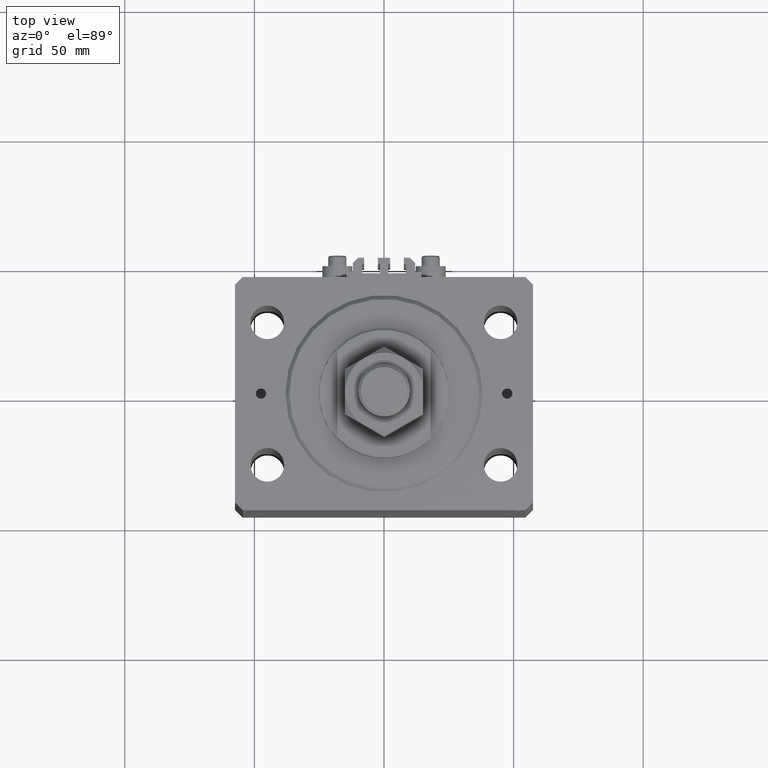
[diagram: clean part render]
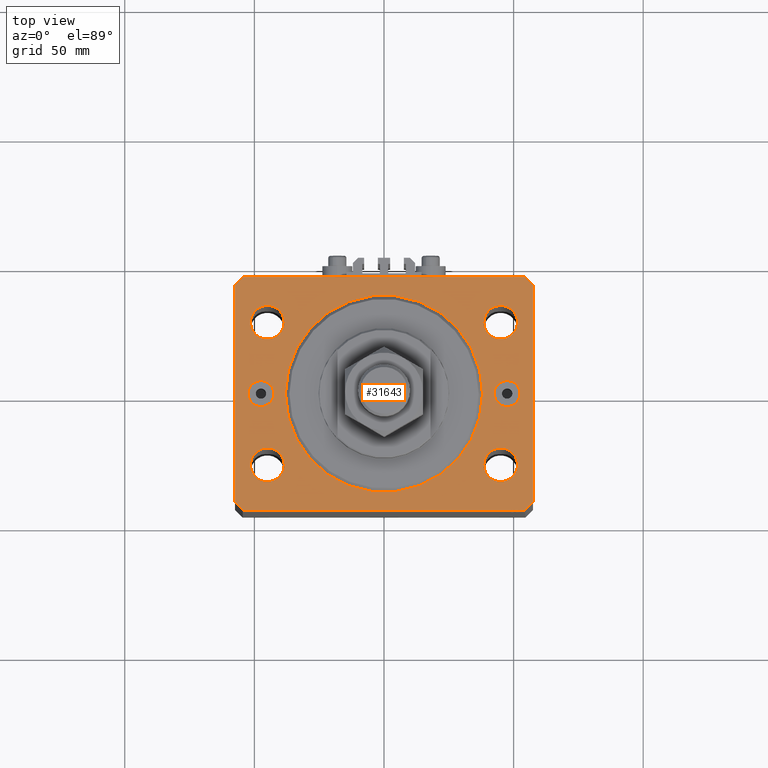
[diagram: same view with one face highlighted and labeled with its STEP entity id]
A machine part, top view. The second image highlights one B-rep face of the part: STEP entity #31643.
In plain terms, the highlighted planar face has unit normal (0, 0, 1).
Its self-contained STEP definition (entity closure, byte-faithful):
#126 = CIRCLE ( 'NONE', #46646, 6.499999999999999112 ) ;
#139 = ORIENTED_EDGE ( 'NONE', *, *, #26978, .F. ) ;
#150 = ORIENTED_EDGE ( 'NONE', *, *, #37514, .F. ) ;
#335 = CARTESIAN_POINT ( 'NONE',  ( -44.99999999999998579, -27.50000000000000355, 0.000000000000000000 ) ) ;
#621 = CARTESIAN_POINT ( 'NONE',  ( 42.50000000000000000, 6.123233995736762338E-16, 0.000000000000000000 ) ) ;
#1061 = EDGE_CURVE ( 'NONE', #2375, #29769, #32992, .T. ) ;
#1367 = EDGE_CURVE ( 'NONE', #43890, #3933, #126, .T. ) ;
#1533 = VECTOR ( 'NONE', #15686, 1000.000000000000000 ) ;
#1837 = FACE_BOUND ( 'NONE', #47786, .T. ) ;
#2072 = PLANE ( 'NONE',  #11763 ) ;
#2375 = VERTEX_POINT ( 'NONE', #4601 ) ;
#2506 = CIRCLE ( 'NONE', #39592, 4.999999999999997335 ) ;
#2761 = CARTESIAN_POINT ( 'NONE',  ( -38.49999999999998579, -27.50000000000000355, 0.000000000000000000 ) ) ;
#2814 = DIRECTION ( 'NONE',  ( 1.000000000000000000, 0.000000000000000000, 0.000000000000000000 ) ) ;
#3151 = CARTESIAN_POINT ( 'NONE',  ( -54.49999999999999289, 45.00000000000000000, 0.000000000000000000 ) ) ;
#3933 = VERTEX_POINT ( 'NONE', #2761 ) ;
#4003 = CARTESIAN_POINT ( 'NONE',  ( 0.000000000000000000, 0.000000000000000000, 0.000000000000000000 ) ) ;
#4020 = CARTESIAN_POINT ( 'NONE',  ( -45.00000000000000000, 27.49999999999999645, 0.000000000000000000 ) ) ;
#4174 = CARTESIAN_POINT ( 'NONE',  ( 38.50000000000000000, 27.49999999999999289, 0.000000000000000000 ) ) ;
#4196 = VERTEX_POINT ( 'NONE', #32087 ) ;
#4539 = CARTESIAN_POINT ( 'NONE',  ( 57.50000000000055422, 41.99999999999997868, 0.000000000000000000 ) ) ;
#4601 = CARTESIAN_POINT ( 'NONE',  ( -57.50000000000000711, -42.00000000000000711, 0.000000000000000000 ) ) ;
#4822 = CARTESIAN_POINT ( 'NONE',  ( 0.000000000000000000, 0.000000000000000000, 0.000000000000000000 ) ) ;
#4858 = DIRECTION ( 'NONE',  ( 1.000000000000000000, 0.000000000000000000, 0.000000000000000000 ) ) ;
#5793 = CIRCLE ( 'NONE', #39700, 4.999999999999997335 ) ;
#5861 = DIRECTION ( 'NONE',  ( 0.7071067811865491270, -0.7071067811865459074, 0.000000000000000000 ) ) ;
#5994 = EDGE_CURVE ( 'NONE', #4196, #20725, #2506, .T. ) ;
#6118 = CARTESIAN_POINT ( 'NONE',  ( -54.50000000000000711, -45.00000000000000000, 0.000000000000000000 ) ) ;
#6315 = DIRECTION ( 'NONE',  ( 1.000000000000000000, 0.000000000000000000, 0.000000000000000000 ) ) ;
#6365 = LINE ( 'NONE', #6118, #39937 ) ;
#6951 = EDGE_CURVE ( 'NONE', #33545, #15860, #36671, .T. ) ;
#7101 = EDGE_LOOP ( 'NONE', ( #18483, #24615 ) ) ;
#7382 = CARTESIAN_POINT ( 'NONE',  ( 45.00000000000000000, 27.49999999999999289, 0.000000000000000000 ) ) ;
#7438 = CARTESIAN_POINT ( 'NONE',  ( -38.00000000000000000, 4.653657836759941941E-15, 0.000000000000000000 ) ) ;
#7806 = ORIENTED_EDGE ( 'NONE', *, *, #23466, .F. ) ;
#8037 = LINE ( 'NONE', #14965, #1533 ) ;
#8096 = VECTOR ( 'NONE', #22360, 1000.000000000000000 ) ;
#8478 = CARTESIAN_POINT ( 'NONE',  ( -54.50000000000000711, -45.00000000000000000, 0.000000000000000000 ) ) ;
#8510 = FACE_BOUND ( 'NONE', #7101, .T. ) ;
#8556 = CARTESIAN_POINT ( 'NONE',  ( -57.49999999999998579, 42.00000000000000711, 0.000000000000000000 ) ) ;
#9212 = EDGE_CURVE ( 'NONE', #26569, #11070, #41289, .T. ) ;
#9232 = VERTEX_POINT ( 'NONE', #39987 ) ;
#9978 = DIRECTION ( 'NONE',  ( 0.000000000000000000, 0.000000000000000000, 1.000000000000000000 ) ) ;
#10040 = CIRCLE ( 'NONE', #37638, 6.499999999999999112 ) ;
#10141 = CARTESIAN_POINT ( 'NONE',  ( -51.49999999999998579, -27.50000000000000355, 0.000000000000000000 ) ) ;
#10250 = CARTESIAN_POINT ( 'NONE',  ( 54.50000000000059686, 45.00000000000002842, 0.000000000000000000 ) ) ;
#10258 = ORIENTED_EDGE ( 'NONE', *, *, #32366, .T. ) ;
#10384 = VERTEX_POINT ( 'NONE', #4174 ) ;
#11070 = VERTEX_POINT ( 'NONE', #12424 ) ;
#11384 = CARTESIAN_POINT ( 'NONE',  ( 38.49999999999998579, -27.50000000000000355, 0.000000000000000000 ) ) ;
#11400 = EDGE_CURVE ( 'NONE', #20725, #4196, #20073, .T. ) ;
#11668 = ORIENTED_EDGE ( 'NONE', *, *, #1367, .F. ) ;
#11763 = AXIS2_PLACEMENT_3D ( 'NONE', #4822, #30981, #12224 ) ;
#12224 = DIRECTION ( 'NONE',  ( 1.000000000000000000, 0.000000000000000000, -0.000000000000000000 ) ) ;
#12424 = CARTESIAN_POINT ( 'NONE',  ( 52.50000000000000000, 0.000000000000000000, 0.000000000000000000 ) ) ;
#12436 = AXIS2_PLACEMENT_3D ( 'NONE', #7382, #22449, #21713 ) ;
#13496 = CARTESIAN_POINT ( 'NONE',  ( -57.50000000000000711, -42.00000000000000711, 0.000000000000000000 ) ) ;
#13513 = ORIENTED_EDGE ( 'NONE', *, *, #24321, .T. ) ;
#13720 = EDGE_LOOP ( 'NONE', ( #41300, #43183 ) ) ;
#13786 = VERTEX_POINT ( 'NONE', #15639 ) ;
#14055 = DIRECTION ( 'NONE',  ( 1.000000000000000000, 0.000000000000000000, 0.000000000000000000 ) ) ;
#14193 = DIRECTION ( 'NONE',  ( 1.000000000000000000, 0.000000000000000000, 0.000000000000000000 ) ) ;
#14301 = EDGE_CURVE ( 'NONE', #39350, #25395, #27611, .T. ) ;
#14485 = VERTEX_POINT ( 'NONE', #17220 ) ;
#14648 = DIRECTION ( 'NONE',  ( 1.000000000000000000, 0.000000000000000000, 0.000000000000000000 ) ) ;
#14965 = CARTESIAN_POINT ( 'NONE',  ( 54.50000000000000711, -44.99999999999998579, 0.000000000000000000 ) ) ;
#15268 = ORIENTED_EDGE ( 'NONE', *, *, #24446, .F. ) ;
#15360 = DIRECTION ( 'NONE',  ( 0.000000000000000000, 0.000000000000000000, 1.000000000000000000 ) ) ;
#15639 = CARTESIAN_POINT ( 'NONE',  ( 51.49999999999998579, -27.50000000000000355, 0.000000000000000000 ) ) ;
#15686 = DIRECTION ( 'NONE',  ( 0.7071067811865483499, 0.7071067811865466846, 0.000000000000000000 ) ) ;
#15711 = VERTEX_POINT ( 'NONE', #18528 ) ;
#15844 = DIRECTION ( 'NONE',  ( 1.000000000000000000, 0.000000000000000000, 0.000000000000000000 ) ) ;
#15860 = VERTEX_POINT ( 'NONE', #34307 ) ;
#16059 = CIRCLE ( 'NONE', #43643, 6.499999999999999112 ) ;
#16118 = EDGE_CURVE ( 'NONE', #15711, #20842, #32001, .T. ) ;
#16688 = EDGE_LOOP ( 'NONE', ( #31288, #11668 ) ) ;
#16986 = AXIS2_PLACEMENT_3D ( 'NONE', #47809, #29039, #44104 ) ;
#17220 = CARTESIAN_POINT ( 'NONE',  ( 54.50000000000000711, -44.99999999999998579, 0.000000000000000000 ) ) ;
#17746 = VERTEX_POINT ( 'NONE', #45859 ) ;
#18376 = VECTOR ( 'NONE', #32737, 1000.000000000000000 ) ;
#18427 = DIRECTION ( 'NONE',  ( 0.000000000000000000, 0.000000000000000000, 1.000000000000000000 ) ) ;
#18483 = ORIENTED_EDGE ( 'NONE', *, *, #5994, .F. ) ;
#18528 = CARTESIAN_POINT ( 'NONE',  ( 38.00000000000000000, 0.000000000000000000, 0.000000000000000000 ) ) ;
#18580 = VECTOR ( 'NONE', #25302, 1000.000000000000000 ) ;
#18595 = EDGE_CURVE ( 'NONE', #13786, #32543, #33560, .T. ) ;
#18965 = EDGE_CURVE ( 'NONE', #15860, #39350, #32949, .T. ) ;
#18993 = CARTESIAN_POINT ( 'NONE',  ( -38.50000000000000000, 27.49999999999999645, 0.000000000000000000 ) ) ;
#19756 = DIRECTION ( 'NONE',  ( 1.000000000000000000, 0.000000000000000000, 0.000000000000000000 ) ) ;
#19800 = AXIS2_PLACEMENT_3D ( 'NONE', #47789, #44327, #6315 ) ;
#19915 = CARTESIAN_POINT ( 'NONE',  ( 0.000000000000000000, 0.000000000000000000, 0.000000000000000000 ) ) ;
#20073 = CIRCLE ( 'NONE', #47666, 4.999999999999997335 ) ;
#20597 = FACE_OUTER_BOUND ( 'NONE', #47870, .T. ) ;
#20725 = VERTEX_POINT ( 'NONE', #24478 ) ;
#20842 = VERTEX_POINT ( 'NONE', #7438 ) ;
#20912 = DIRECTION ( 'NONE',  ( 1.000000000000000000, 0.000000000000000000, 0.000000000000000000 ) ) ;
#21115 = DIRECTION ( 'NONE',  ( 0.000000000000000000, 0.000000000000000000, 1.000000000000000000 ) ) ;
#21713 = DIRECTION ( 'NONE',  ( 1.000000000000000000, 0.000000000000000000, 0.000000000000000000 ) ) ;
#21771 = VERTEX_POINT ( 'NONE', #32100 ) ;
#21920 = EDGE_LOOP ( 'NONE', ( #44816, #31476 ) ) ;
#22122 = CARTESIAN_POINT ( 'NONE',  ( 57.50000000000000711, -41.99999999999998579, 0.000000000000000000 ) ) ;
#22360 = DIRECTION ( 'NONE',  ( -0.7071067811865369146, 0.7071067811865581199, 0.000000000000000000 ) ) ;
#22449 = DIRECTION ( 'NONE',  ( 0.000000000000000000, 0.000000000000000000, 1.000000000000000000 ) ) ;
#22941 = ORIENTED_EDGE ( 'NONE', *, *, #1061, .T. ) ;
#23001 = VECTOR ( 'NONE', #45736, 1000.000000000000000 ) ;
#23424 = EDGE_LOOP ( 'NONE', ( #150, #7806 ) ) ;
#23466 = EDGE_CURVE ( 'NONE', #17746, #33713, #26539, .T. ) ;
#23519 = CARTESIAN_POINT ( 'NONE',  ( -57.49999999999998579, 42.00000000000000711, 0.000000000000000000 ) ) ;
#23583 = FACE_BOUND ( 'NONE', #23424, .T. ) ;
#23701 = DIRECTION ( 'NONE',  ( 0.000000000000000000, 0.000000000000000000, 1.000000000000000000 ) ) ;
#24178 = AXIS2_PLACEMENT_3D ( 'NONE', #19915, #31253, #4858 ) ;
#24321 = EDGE_CURVE ( 'NONE', #29769, #14485, #6365, .T. ) ;
#24446 = EDGE_CURVE ( 'NONE', #20842, #15711, #35980, .T. ) ;
#24478 = CARTESIAN_POINT ( 'NONE',  ( -52.50000000000000000, 6.123233995736762338E-16, 0.000000000000000000 ) ) ;
#24615 = ORIENTED_EDGE ( 'NONE', *, *, #11400, .F. ) ;
#25034 = CARTESIAN_POINT ( 'NONE',  ( -44.99999999999998579, -27.50000000000000355, 0.000000000000000000 ) ) ;
#25302 = DIRECTION ( 'NONE',  ( -1.000000000000000000, -2.546383084002638829E-16, 0.000000000000000000 ) ) ;
#25395 = VERTEX_POINT ( 'NONE', #8556 ) ;
#25550 = DIRECTION ( 'NONE',  ( 0.000000000000000000, 0.000000000000000000, 1.000000000000000000 ) ) ;
#25798 = CARTESIAN_POINT ( 'NONE',  ( 57.50000000000055422, 41.99999999999997868, 0.000000000000000000 ) ) ;
#26356 = EDGE_CURVE ( 'NONE', #9232, #10384, #10040, .T. ) ;
#26539 = CIRCLE ( 'NONE', #28895, 6.499999999999999112 ) ;
#26569 = VERTEX_POINT ( 'NONE', #621 ) ;
#26738 = DIRECTION ( 'NONE',  ( 0.000000000000000000, 0.000000000000000000, 1.000000000000000000 ) ) ;
#26978 = EDGE_CURVE ( 'NONE', #10384, #9232, #34531, .T. ) ;
#27611 = LINE ( 'NONE', #43395, #46154 ) ;
#28309 = DIRECTION ( 'NONE',  ( 0.000000000000000000, -0.000000000000000000, -1.000000000000000000 ) ) ;
#28895 = AXIS2_PLACEMENT_3D ( 'NONE', #4020, #48471, #14648 ) ;
#29039 = DIRECTION ( 'NONE',  ( 0.000000000000000000, 0.000000000000000000, 1.000000000000000000 ) ) ;
#29769 = VERTEX_POINT ( 'NONE', #8478 ) ;
#30784 = CIRCLE ( 'NONE', #31542, 6.499999999999999112 ) ;
#30981 = DIRECTION ( 'NONE',  ( 0.000000000000000000, 0.000000000000000000, 1.000000000000000000 ) ) ;
#31253 = DIRECTION ( 'NONE',  ( 0.000000000000000000, 0.000000000000000000, 1.000000000000000000 ) ) ;
#31288 = ORIENTED_EDGE ( 'NONE', *, *, #45985, .F. ) ;
#31476 = ORIENTED_EDGE ( 'NONE', *, *, #38345, .F. ) ;
#31542 = AXIS2_PLACEMENT_3D ( 'NONE', #37185, #18427, #44835 ) ;
#31643 = ADVANCED_FACE ( 'NONE', ( #20597, #23583, #1837, #46046, #31940, #47008, #8510, #35893 ), #2072, .T. ) ;
#31718 = ORIENTED_EDGE ( 'NONE', *, *, #16118, .F. ) ;
#31790 = AXIS2_PLACEMENT_3D ( 'NONE', #32320, #32813, #14055 ) ;
#31940 = FACE_BOUND ( 'NONE', #16688, .T. ) ;
#32001 = CIRCLE ( 'NONE', #34370, 38.00000000000000000 ) ;
#32087 = CARTESIAN_POINT ( 'NONE',  ( -42.50000000000000000, 0.000000000000000000, 0.000000000000000000 ) ) ;
#32100 = CARTESIAN_POINT ( 'NONE',  ( 57.50000000000000711, -41.99999999999998579, 0.000000000000000000 ) ) ;
#32320 = CARTESIAN_POINT ( 'NONE',  ( 47.50000000000000000, 0.000000000000000000, 0.000000000000000000 ) ) ;
#32366 = EDGE_CURVE ( 'NONE', #14485, #21771, #8037, .T. ) ;
#32543 = VERTEX_POINT ( 'NONE', #11384 ) ;
#32737 = DIRECTION ( 'NONE',  ( 6.443258625056715108E-15, 1.000000000000000000, 0.000000000000000000 ) ) ;
#32813 = DIRECTION ( 'NONE',  ( 0.000000000000000000, -0.000000000000000000, -1.000000000000000000 ) ) ;
#32949 = LINE ( 'NONE', #10250, #18580 ) ;
#32992 = LINE ( 'NONE', #13496, #41159 ) ;
#33195 = CARTESIAN_POINT ( 'NONE',  ( -47.50000000000000000, 0.000000000000000000, 0.000000000000000000 ) ) ;
#33545 = VERTEX_POINT ( 'NONE', #4539 ) ;
#33560 = CIRCLE ( 'NONE', #16986, 6.499999999999999112 ) ;
#33617 = ORIENTED_EDGE ( 'NONE', *, *, #40854, .T. ) ;
#33713 = VERTEX_POINT ( 'NONE', #18993 ) ;
#34072 = CARTESIAN_POINT ( 'NONE',  ( 45.00000000000000000, 27.49999999999999289, 0.000000000000000000 ) ) ;
#34307 = CARTESIAN_POINT ( 'NONE',  ( 54.50000000000059686, 45.00000000000002842, 0.000000000000000000 ) ) ;
#34370 = AXIS2_PLACEMENT_3D ( 'NONE', #4003, #15360, #15844 ) ;
#34531 = CIRCLE ( 'NONE', #12436, 6.499999999999999112 ) ;
#35893 = FACE_BOUND ( 'NONE', #13720, .T. ) ;
#35980 = CIRCLE ( 'NONE', #24178, 38.00000000000000000 ) ;
#36071 = ORIENTED_EDGE ( 'NONE', *, *, #18965, .T. ) ;
#36203 = CARTESIAN_POINT ( 'NONE',  ( 47.50000000000000000, 0.000000000000000000, 0.000000000000000000 ) ) ;
#36671 = LINE ( 'NONE', #25798, #8096 ) ;
#36691 = ORIENTED_EDGE ( 'NONE', *, *, #26356, .F. ) ;
#36928 = LINE ( 'NONE', #22122, #18376 ) ;
#37126 = CIRCLE ( 'NONE', #19800, 6.499999999999999112 ) ;
#37185 = CARTESIAN_POINT ( 'NONE',  ( -45.00000000000000000, 27.49999999999999645, 0.000000000000000000 ) ) ;
#37514 = EDGE_CURVE ( 'NONE', #33713, #17746, #30784, .T. ) ;
#37638 = AXIS2_PLACEMENT_3D ( 'NONE', #34072, #23701, #19756 ) ;
#38345 = EDGE_CURVE ( 'NONE', #32543, #13786, #37126, .T. ) ;
#38728 = DIRECTION ( 'NONE',  ( -0.7071067811865483499, -0.7071067811865466846, 0.000000000000000000 ) ) ;
#39350 = VERTEX_POINT ( 'NONE', #3151 ) ;
#39592 = AXIS2_PLACEMENT_3D ( 'NONE', #33195, #25550, #44071 ) ;
#39700 = AXIS2_PLACEMENT_3D ( 'NONE', #36203, #28309, #20912 ) ;
#39937 = VECTOR ( 'NONE', #44133, 1000.000000000000000 ) ;
#39987 = CARTESIAN_POINT ( 'NONE',  ( 51.50000000000000000, 27.49999999999999289, 0.000000000000000000 ) ) ;
#40854 = EDGE_CURVE ( 'NONE', #25395, #2375, #46460, .T. ) ;
#40914 = ORIENTED_EDGE ( 'NONE', *, *, #6951, .T. ) ;
#41159 = VECTOR ( 'NONE', #5861, 1000.000000000000114 ) ;
#41289 = CIRCLE ( 'NONE', #31790, 4.999999999999997335 ) ;
#41300 = ORIENTED_EDGE ( 'NONE', *, *, #45590, .T. ) ;
#41732 = EDGE_LOOP ( 'NONE', ( #31718, #15268 ) ) ;
#41800 = DIRECTION ( 'NONE',  ( 1.000000000000000000, 0.000000000000000000, 0.000000000000000000 ) ) ;
#43183 = ORIENTED_EDGE ( 'NONE', *, *, #9212, .T. ) ;
#43395 = CARTESIAN_POINT ( 'NONE',  ( -54.49999999999999289, 45.00000000000000000, 0.000000000000000000 ) ) ;
#43643 = AXIS2_PLACEMENT_3D ( 'NONE', #335, #26738, #41800 ) ;
#43890 = VERTEX_POINT ( 'NONE', #10141 ) ;
#44071 = DIRECTION ( 'NONE',  ( 1.000000000000000000, 0.000000000000000000, 0.000000000000000000 ) ) ;
#44104 = DIRECTION ( 'NONE',  ( 1.000000000000000000, 0.000000000000000000, 0.000000000000000000 ) ) ;
#44133 = DIRECTION ( 'NONE',  ( 1.000000000000000000, 1.273191542001326317E-16, 0.000000000000000000 ) ) ;
#44327 = DIRECTION ( 'NONE',  ( 0.000000000000000000, 0.000000000000000000, 1.000000000000000000 ) ) ;
#44525 = EDGE_CURVE ( 'NONE', #21771, #33545, #36928, .T. ) ;
#44701 = ORIENTED_EDGE ( 'NONE', *, *, #44525, .T. ) ;
#44816 = ORIENTED_EDGE ( 'NONE', *, *, #18595, .F. ) ;
#44835 = DIRECTION ( 'NONE',  ( 1.000000000000000000, 0.000000000000000000, 0.000000000000000000 ) ) ;
#45590 = EDGE_CURVE ( 'NONE', #11070, #26569, #5793, .T. ) ;
#45736 = DIRECTION ( 'NONE',  ( -2.478176394252581141E-16, -1.000000000000000000, 0.000000000000000000 ) ) ;
#45859 = CARTESIAN_POINT ( 'NONE',  ( -51.50000000000000000, 27.49999999999999645, 0.000000000000000000 ) ) ;
#45985 = EDGE_CURVE ( 'NONE', #3933, #43890, #16059, .T. ) ;
#46046 = FACE_BOUND ( 'NONE', #21920, .T. ) ;
#46154 = VECTOR ( 'NONE', #38728, 1000.000000000000000 ) ;
#46460 = LINE ( 'NONE', #23519, #23001 ) ;
#46646 = AXIS2_PLACEMENT_3D ( 'NONE', #25034, #9978, #2814 ) ;
#47008 = FACE_BOUND ( 'NONE', #41732, .T. ) ;
#47666 = AXIS2_PLACEMENT_3D ( 'NONE', #48019, #21115, #14193 ) ;
#47786 = EDGE_LOOP ( 'NONE', ( #36691, #139 ) ) ;
#47789 = CARTESIAN_POINT ( 'NONE',  ( 44.99999999999998579, -27.50000000000000355, 0.000000000000000000 ) ) ;
#47809 = CARTESIAN_POINT ( 'NONE',  ( 44.99999999999998579, -27.50000000000000355, 0.000000000000000000 ) ) ;
#47870 = EDGE_LOOP ( 'NONE', ( #36071, #48450, #33617, #22941, #13513, #10258, #44701, #40914 ) ) ;
#48019 = CARTESIAN_POINT ( 'NONE',  ( -47.50000000000000000, 0.000000000000000000, 0.000000000000000000 ) ) ;
#48450 = ORIENTED_EDGE ( 'NONE', *, *, #14301, .T. ) ;
#48471 = DIRECTION ( 'NONE',  ( 0.000000000000000000, 0.000000000000000000, 1.000000000000000000 ) ) ;